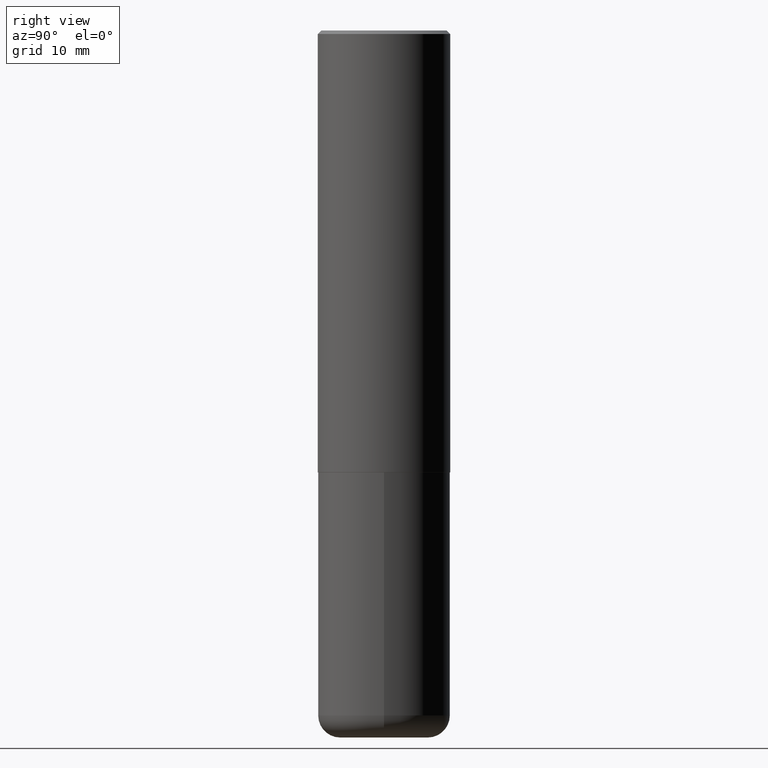
[diagram: clean part render]
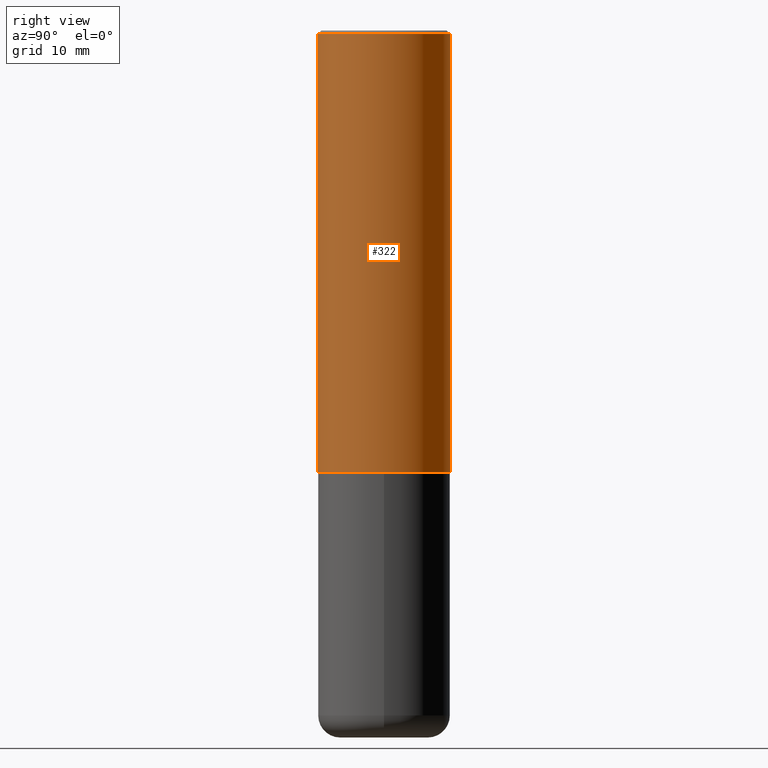
[diagram: same view with one face highlighted and labeled with its STEP entity id]
A machine part, right view. The second image highlights one B-rep face of the part: STEP entity #322.
In plain terms, the highlighted cylindrical surface (partial cylindrical patch) has radius 9.525 mm, axis along (-0, 0, 1).
Its self-contained STEP definition (entity closure, byte-faithful):
#6 = CIRCLE ( 'NONE', #286, 0.3750000000000000555 ) ;
#12 = CARTESIAN_POINT ( 'NONE',  ( 2.664535259100376486E-15, 0.3750000000000001665, -1.309801855808293473E-15 ) ) ;
#29 = AXIS2_PLACEMENT_3D ( 'NONE', #327, #360, #37 ) ;
#37 = DIRECTION ( 'NONE',  ( -6.982962677686266711E-15, -1.000000000000000000, 3.492804948822114482E-15 ) ) ;
#55 = DIRECTION ( 'NONE',  ( -6.982962677686265922E-15, -1.000000000000000000, 3.494488891895536035E-15 ) ) ;
#58 = VERTEX_POINT ( 'NONE', #208 ) ;
#71 = DIRECTION ( 'NONE',  ( -6.982962677686266711E-15, -1.000000000000000000, 2.913971193241878794E-15 ) ) ;
#79 = LINE ( 'NONE', #178, #202 ) ;
#93 = VERTEX_POINT ( 'NONE', #350 ) ;
#127 = ORIENTED_EDGE ( 'NONE', *, *, #369, .T. ) ;
#130 = VERTEX_POINT ( 'NONE', #409 ) ;
#144 = DIRECTION ( 'NONE',  ( -2.444544534276841158E-29, 3.492804948822114482E-15, 1.000000000000000000 ) ) ;
#152 = EDGE_CURVE ( 'NONE', #415, #130, #79, .T. ) ;
#153 = EDGE_LOOP ( 'NONE', ( #288, #127, #291, #281 ) ) ;
#165 = DIRECTION ( 'NONE',  ( -2.444544534276841438E-29, 3.492804948822114088E-15, 1.000000000000000000 ) ) ;
#178 = CARTESIAN_POINT ( 'NONE',  ( -2.618611004132351200E-15, -0.3750000000000001665, 1.309801855808293473E-15 ) ) ;
#186 = AXIS2_PLACEMENT_3D ( 'NONE', #370, #165, #71 ) ;
#202 = VECTOR ( 'NONE', #246, 39.37007874015748143 ) ;
#208 = CARTESIAN_POINT ( 'NONE',  ( 2.618611004132350411E-15, 0.3749999999999999445, -0.02000000000000139513 ) ) ;
#213 = DIRECTION ( 'NONE',  ( -2.444544534276841438E-29, 3.492804948822114088E-15, 1.000000000000000000 ) ) ;
#229 = EDGE_CURVE ( 'NONE', #130, #58, #6, .T. ) ;
#230 = CYLINDRICAL_SURFACE ( 'NONE', #29, 0.3750000000000001665 ) ;
#240 = CARTESIAN_POINT ( 'NONE',  ( -2.618611004132290852E-15, -0.3750000000000090483, -2.498999999999998778 ) ) ;
#242 = LINE ( 'NONE', #12, #300 ) ;
#246 = DIRECTION ( 'NONE',  ( -2.444544534276841158E-29, 3.492804948822114482E-15, 1.000000000000000000 ) ) ;
#279 = EDGE_CURVE ( 'NONE', #415, #93, #308, .T. ) ;
#281 = ORIENTED_EDGE ( 'NONE', *, *, #152, .F. ) ;
#286 = AXIS2_PLACEMENT_3D ( 'NONE', #340, #213, #55 ) ;
#288 = ORIENTED_EDGE ( 'NONE', *, *, #279, .T. ) ;
#291 = ORIENTED_EDGE ( 'NONE', *, *, #229, .F. ) ;
#300 = VECTOR ( 'NONE', #144, 39.37007874015748143 ) ;
#308 = CIRCLE ( 'NONE', #186, 0.3750000000000002776 ) ;
#322 = ADVANCED_FACE ( 'NONE', ( #390 ), #230, .T. ) ;
#327 = CARTESIAN_POINT ( 'NONE',  ( 0.000000000000000000, 0.000000000000000000, 0.000000000000000000 ) ) ;
#340 = CARTESIAN_POINT ( 'NONE',  ( 4.889089068553703440E-31, -6.985609897644257463E-17, -0.02000000000000008715 ) ) ;
#350 = CARTESIAN_POINT ( 'NONE',  ( 2.664535259100408040E-15, 0.3749999999999915623, -2.499000000000000998 ) ) ;
#360 = DIRECTION ( 'NONE',  ( -2.444544534276841438E-29, 3.492804948822114088E-15, 1.000000000000000000 ) ) ;
#369 = EDGE_CURVE ( 'NONE', #93, #58, #242, .T. ) ;
#370 = CARTESIAN_POINT ( 'NONE',  ( 6.108916791157826464E-29, -8.728519567106462304E-15, -2.498999999999999666 ) ) ;
#390 = FACE_OUTER_BOUND ( 'NONE', #153, .T. ) ;
#409 = CARTESIAN_POINT ( 'NONE',  ( -2.572686749164323547E-15, -0.3750000000000001110, -0.01999999999999877570 ) ) ;
#415 = VERTEX_POINT ( 'NONE', #240 ) ;